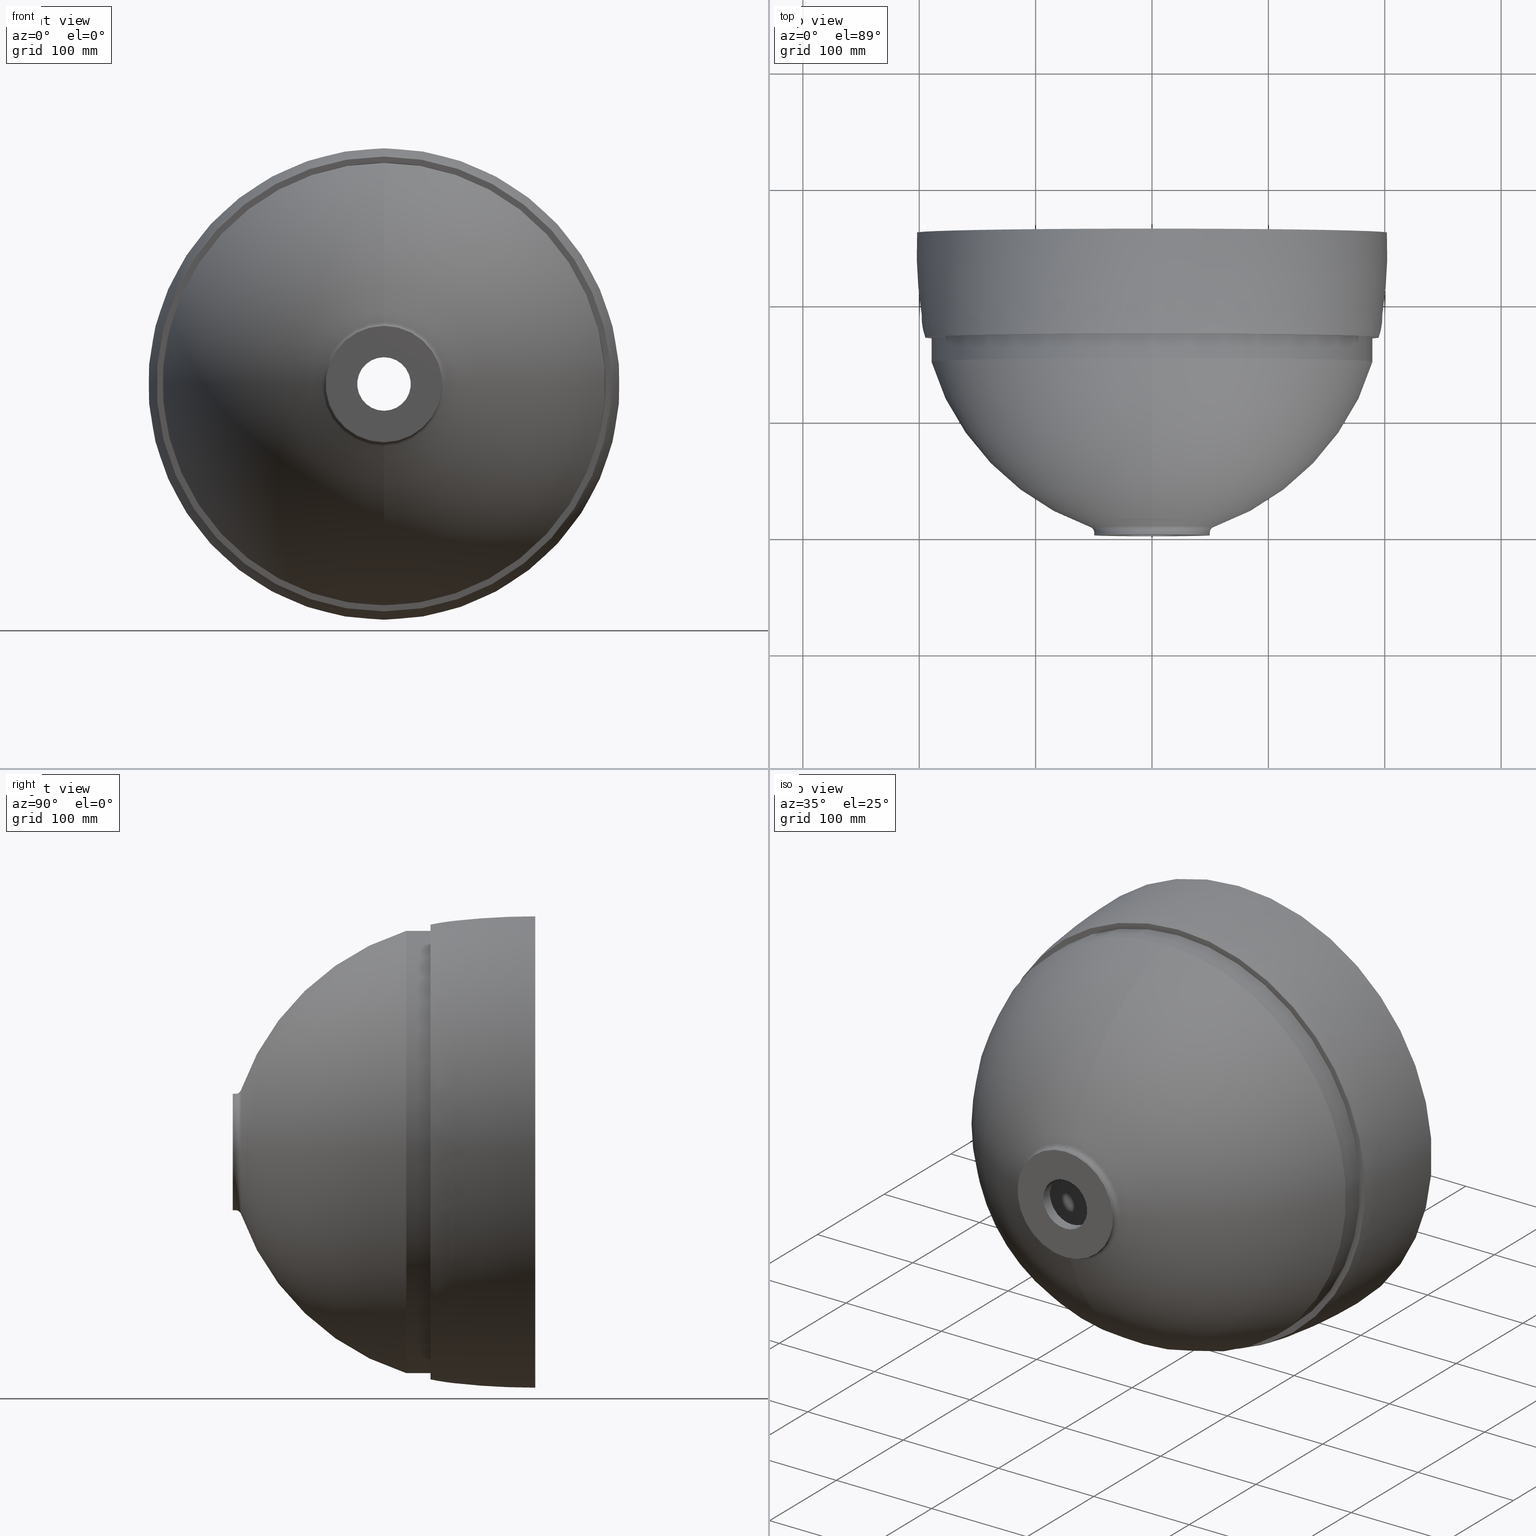
[diagram: canonical four-view strip — front | top / right | iso, engineering-drawing reading convention]
A machine part, canonical four-view strip (front | top / right | iso — engineering-drawing reading convention). The complete STEP part file that produces these views, byte-faithful:
ISO-10303-21;
HEADER;
FILE_DESCRIPTION (( 'STEP AP214' ),
    '1' );
FILE_NAME ('Z821-1SO.STEP',
    '2018-09-07T07:44:31',
    ( 'User' ),
    ( '' ),
    'SwSTEP 2.0',
    'SolidWorks 2017',
    '' );
FILE_SCHEMA (( 'AUTOMOTIVE_DESIGN' ));
ENDSEC;

DATA;
#1 = DIRECTION ( 'NONE',  ( -0.0000000000000000000, -1.000000000000000000, -0.0000000000000000000 ) ) ;
#2 = AXIS2_PLACEMENT_3D ( 'NONE', #77, #99, #374 ) ;
#3 = PRODUCT_CONTEXT ( 'NONE', #568, 'mechanical' ) ;
#4 = ADVANCED_FACE ( 'NONE', ( #101 ), #164, .T. ) ;
#5 = DIRECTION ( 'NONE',  ( -0.0000000000000000000, -1.000000000000000000, -0.0000000000000000000 ) ) ;
#6 = AXIS2_PLACEMENT_3D ( 'NONE', #523, #210, #426 ) ;
#7 = VERTEX_POINT ( 'NONE', #480 ) ;
#8 = TOROIDAL_SURFACE ( 'NONE', #537, 211.7896527892887400, 24.70099879950642900 ) ;
#9 = CARTESIAN_POINT ( 'NONE',  ( 2.816687638038930100E-015, 9.999999999999994700, 23.00000000000014600 ) ) ;
#10 = VERTEX_POINT ( 'NONE', #530 ) ;
#11 = ORIENTED_EDGE ( 'NONE', *, *, #689, .F. ) ;
#12 = AXIS2_PLACEMENT_3D ( 'NONE', #529, #145, #134 ) ;
#13 = CIRCLE ( 'NONE', #445, 23.00000000000014600 ) ;
#14 = CIRCLE ( 'NONE', #152, 49.99999999999999300 ) ;
#15 = ORIENTED_EDGE ( 'NONE', *, *, #563, .F. ) ;
#16 = AXIS2_PLACEMENT_3D ( 'NONE', #500, #170, #239 ) ;
#17 = DIRECTION ( 'NONE',  ( -0.0000000000000000000, -1.000000000000000000, -0.0000000000000000000 ) ) ;
#18 = DIRECTION ( 'NONE',  ( 0.0000000000000000000, 0.0000000000000000000, -1.000000000000000000 ) ) ;
#19 = ORIENTED_EDGE ( 'NONE', *, *, #463, .T. ) ;
#20 = DIRECTION ( 'NONE',  ( -0.0000000000000000000, -1.000000000000000000, -0.0000000000000000000 ) ) ;
#21 = DIRECTION ( 'NONE',  ( 0.0000000000000000000, 0.0000000000000000000, -1.000000000000000000 ) ) ;
#22 = CIRCLE ( 'NONE', #112, 202.5000000000002300 ) ;
#23 = MECHANICAL_DESIGN_GEOMETRIC_PRESENTATION_REPRESENTATION (  '', ( #650 ), #58 ) ;
#24 = DIRECTION ( 'NONE',  ( 0.0000000000000000000, 0.0000000000000000000, -1.000000000000000000 ) ) ;
#25 = DIRECTION ( 'NONE',  ( 0.0000000000000000000, 0.0000000000000000000, 1.000000000000000000 ) ) ;
#26 = DIRECTION ( 'NONE',  ( -0.0000000000000000000, -1.000000000000000000, -0.0000000000000000000 ) ) ;
#27 = EDGE_CURVE ( 'NONE', #451, #226, #449, .T. ) ;
#28 = DIRECTION ( 'NONE',  ( 0.0000000000000000000, 1.000000000000000000, 0.0000000000000000000 ) ) ;
#29 = CARTESIAN_POINT ( 'NONE',  ( 0.0000000000000000000, 9.999999999999994700, 0.0000000000000000000 ) ) ;
#30 = FACE_BOUND ( 'NONE', #497, .T. ) ;
#31 = AXIS2_PLACEMENT_3D ( 'NONE', #285, #1, #113 ) ;
#32 = ORIENTED_EDGE ( 'NONE', *, *, #220, .F. ) ;
#33 = DIRECTION ( 'NONE',  ( -1.224646799147353200E-016, 0.0000000000000000000, -1.000000000000000000 ) ) ;
#34 = VERTEX_POINT ( 'NONE', #63 ) ;
#35 = EDGE_CURVE ( 'NONE', #178, #419, #240, .T. ) ;
#36 = CARTESIAN_POINT ( 'NONE',  ( 0.0000000000000000000, 214.5517857468367100, 20.04393379733535600 ) ) ;
#37 = AXIS2_PLACEMENT_3D ( 'NONE', #418, #620, #138 ) ;
#38 = EDGE_LOOP ( 'NONE', ( #109, #15, #675, #39 ) ) ;
#39 = ORIENTED_EDGE ( 'NONE', *, *, #598, .T. ) ;
#40 = CARTESIAN_POINT ( 'NONE',  ( 0.0000000000000000000, 260.0000000000000000, -202.4999999999996600 ) ) ;
#41 = AXIS2_PLACEMENT_3D ( 'NONE', #287, #342, #397 ) ;
#42 = CARTESIAN_POINT ( 'NONE',  ( 0.0000000000000000000, 214.5517857468367100, 0.0000000000000000000 ) ) ;
#43 = CARTESIAN_POINT ( 'NONE',  ( 0.0000000000000000000, 2.435289452415639200, -55.00000000000000000 ) ) ;
#44 = FACE_OUTER_BOUND ( 'NONE', #50, .T. ) ;
#45 = CONICAL_SURFACE ( 'NONE', #577, 23.00000000000014600, 0.8726646259971667700 ) ;
#46 = VERTEX_POINT ( 'NONE', #602 ) ;
#47 = ORIENTED_EDGE ( 'NONE', *, *, #288, .F. ) ;
#48 = LINE ( 'NONE', #125, #468 ) ;
#49 = AXIS2_PLACEMENT_3D ( 'NONE', #246, #303, #666 ) ;
#50 = EDGE_LOOP ( 'NONE', ( #351, #587, #484, #32 ) ) ;
#51 = EDGE_CURVE ( 'NONE', #562, #46, #260, .T. ) ;
#52 = DIRECTION ( 'NONE',  ( -0.0000000000000000000, -1.000000000000000000, -0.0000000000000000000 ) ) ;
#53 = ORIENTED_EDGE ( 'NONE', *, *, #656, .F. ) ;
#54 =( NAMED_UNIT ( * ) PLANE_ANGLE_UNIT ( ) SI_UNIT ( $, .RADIAN. ) );
#55 = VERTEX_POINT ( 'NONE', #414 ) ;
#56 = ADVANCED_FACE ( 'NONE', ( #385 ), #108, .T. ) ;
#57 = DIRECTION ( 'NONE',  ( 0.0000000000000000000, 0.0000000000000000000, 1.000000000000000000 ) ) ;
#58 =( GEOMETRIC_REPRESENTATION_CONTEXT ( 3 ) GLOBAL_UNCERTAINTY_ASSIGNED_CONTEXT ( ( #667 ) ) GLOBAL_UNIT_ASSIGNED_CONTEXT ( ( #664, #552, #431 ) ) REPRESENTATION_CONTEXT ( 'NONE', 'WORKASPACE' ) );
#59 = ORIENTED_EDGE ( 'NONE', *, *, #567, .F. ) ;
#60 = ORIENTED_EDGE ( 'NONE', *, *, #413, .T. ) ;
#61 = CARTESIAN_POINT ( 'NONE',  ( 0.0000000000000000000, 9.999999999999994700, 0.0000000000000000000 ) ) ;
#62 = EDGE_CURVE ( 'NONE', #267, #128, #90, .T. ) ;
#63 = CARTESIAN_POINT ( 'NONE',  ( 0.0000000000000000000, 2.435289452415640100, -49.99999999999999300 ) ) ;
#64 = FACE_OUTER_BOUND ( 'NONE', #312, .T. ) ;
#65 = DIRECTION ( 'NONE',  ( 0.0000000000000000000, 0.0000000000000000000, -1.000000000000000000 ) ) ;
#66 = ORIENTED_EDGE ( 'NONE', *, *, #141, .T. ) ;
#67 = ORIENTED_EDGE ( 'NONE', *, *, #103, .T. ) ;
#68 = DIRECTION ( 'NONE',  ( 0.0000000000000000000, 0.0000000000000000000, -1.000000000000000000 ) ) ;
#69 = EDGE_CURVE ( 'NONE', #692, #681, #606, .T. ) ;
#70 = DIRECTION ( 'NONE',  ( -0.0000000000000000000, -1.000000000000000000, -0.0000000000000000000 ) ) ;
#71 = AXIS2_PLACEMENT_3D ( 'NONE', #581, #432, #630 ) ;
#72 = CARTESIAN_POINT ( 'NONE',  ( 0.0000000000000000000, 170.0000000000000000, 0.0000000000000000000 ) ) ;
#73 = VECTOR ( 'NONE', #206, 1000.000000000000000 ) ;
#74 = SURFACE_STYLE_FILL_AREA ( #87 ) ;
#75 = ORIENTED_EDGE ( 'NONE', *, *, #51, .F. ) ;
#76 = CARTESIAN_POINT ( 'NONE',  ( 6.123233995736766100E-015, -36.83810861832611700, 50.00000000000000000 ) ) ;
#77 = CARTESIAN_POINT ( 'NONE',  ( 0.0000000000000000000, 19.99999999999998900, 0.0000000000000000000 ) ) ;
#78 = DIRECTION ( 'NONE',  ( -0.0000000000000000000, -1.000000000000000000, -0.0000000000000000000 ) ) ;
#79 = EDGE_CURVE ( 'NONE', #55, #329, #421, .T. ) ;
#80 = DIRECTION ( 'NONE',  ( 0.0000000000000000000, 0.0000000000000000000, -1.000000000000000000 ) ) ;
#81 = TOROIDAL_SURFACE ( 'NONE', #281, -424.7456170315086900, 612.2456170315085700 ) ;
#82 = PRODUCT_DEFINITION_SHAPE ( 'NONE', 'NONE',  #117 ) ;
#83 = DIRECTION ( 'NONE',  ( 0.0000000000000000000, 0.0000000000000000000, -1.000000000000000000 ) ) ;
#84 = ORIENTED_EDGE ( 'NONE', *, *, #79, .T. ) ;
#85 = EDGE_LOOP ( 'NONE', ( #685, #59 ) ) ;
#86 = DIRECTION ( 'NONE',  ( -0.0000000000000000000, -1.000000000000000000, -0.0000000000000000000 ) ) ;
#87 = FILL_AREA_STYLE ('',( #116 ) ) ;
#88 = AXIS2_PLACEMENT_3D ( 'NONE', #660, #365, #142 ) ;
#89 = DIRECTION ( 'NONE',  ( -0.0000000000000000000, -1.000000000000000000, -0.0000000000000000000 ) ) ;
#90 = LINE ( 'NONE', #392, #147 ) ;
#91 = AXIS2_PLACEMENT_3D ( 'NONE', #237, #148, #472 ) ;
#92 = ORIENTED_EDGE ( 'NONE', *, *, #62, .F. ) ;
#93 = DIRECTION ( 'NONE',  ( 0.0000000000000000000, 0.0000000000000000000, -1.000000000000000000 ) ) ;
#94 = DIRECTION ( 'NONE',  ( 0.0000000000000000000, 0.0000000000000000000, -1.000000000000000000 ) ) ;
#95 = UNCERTAINTY_MEASURE_WITH_UNIT (LENGTH_MEASURE( 1.000000000000000100E-005 ), #583, 'distance_accuracy_value', 'NONE');
#96 = ADVANCED_FACE ( 'NONE', ( #274 ), #45, .F. ) ;
#97 = AXIS2_PLACEMENT_3D ( 'NONE', #616, #672, #252 ) ;
#98 = VERTEX_POINT ( 'NONE', #201 ) ;
#99 = DIRECTION ( 'NONE',  ( -0.0000000000000000000, -1.000000000000000000, -0.0000000000000000000 ) ) ;
#100 = EDGE_LOOP ( 'NONE', ( #183, #209, #202, #235 ) ) ;
#101 = FACE_OUTER_BOUND ( 'NONE', #621, .T. ) ;
#102 = ORIENTED_EDGE ( 'NONE', *, *, #364, .F. ) ;
#103 = EDGE_CURVE ( 'NONE', #289, #46, #644, .T. ) ;
#104 = ORIENTED_EDGE ( 'NONE', *, *, #295, .T. ) ;
#105 = DIRECTION ( 'NONE',  ( -0.0000000000000000000, -1.000000000000000000, -0.0000000000000000000 ) ) ;
#106 = AXIS2_PLACEMENT_3D ( 'NONE', #248, #191, #245 ) ;
#107 = CIRCLE ( 'NONE', #629, 612.2456170315086900 ) ;
#108 = TOROIDAL_SURFACE ( 'NONE', #31, -424.7456170315086900, 627.2456170315089100 ) ;
#109 = ORIENTED_EDGE ( 'NONE', *, *, #103, .F. ) ;
#110 = TOROIDAL_SURFACE ( 'NONE', #188, -424.7456170315086900, 627.2456170315089100 ) ;
#111 = CARTESIAN_POINT ( 'NONE',  ( 0.0000000000000000000, 9.999999999999994700, -23.00000000000014600 ) ) ;
#112 = AXIS2_PLACEMENT_3D ( 'NONE', #561, #516, #300 ) ;
#113 = DIRECTION ( 'NONE',  ( 0.0000000000000000000, 0.0000000000000000000, -1.000000000000000000 ) ) ;
#114 = DIRECTION ( 'NONE',  ( -0.0000000000000000000, -1.000000000000000000, -0.0000000000000000000 ) ) ;
#115 = ADVANCED_FACE ( 'NONE', ( #64 ), #343, .T. ) ;
#116 = FILL_AREA_STYLE_COLOUR ( '', #324 ) ;
#117 = PRODUCT_DEFINITION ( 'UNKNOWN', '', #588, #217 ) ;
#118 = DIRECTION ( 'NONE',  ( 0.0000000000000000000, -0.0000000000000000000, 1.000000000000000000 ) ) ;
#119 = ORIENTED_EDGE ( 'NONE', *, *, #179, .F. ) ;
#120 = ORIENTED_EDGE ( 'NONE', *, *, #598, .F. ) ;
#121 = DIRECTION ( 'NONE',  ( 0.0000000000000000000, 0.0000000000000000000, -1.000000000000000000 ) ) ;
#122 = CIRCLE ( 'NONE', #318, 198.5817961994824000 ) ;
#123 = CARTESIAN_POINT ( 'NONE',  ( 0.0000000000000000000, 260.0000000000000000, 424.7456170315086900 ) ) ;
#124 = SHAPE_DEFINITION_REPRESENTATION ( #592, #626 ) ;
#125 = CARTESIAN_POINT ( 'NONE',  ( 0.0000000000000000000, -36.83810861832611700, -190.0000000000000000 ) ) ;
#126 = AXIS2_PLACEMENT_3D ( 'NONE', #333, #649, #25 ) ;
#127 = FACE_OUTER_BOUND ( 'NONE', #538, .T. ) ;
#128 = VERTEX_POINT ( 'NONE', #356 ) ;
#129 = EDGE_LOOP ( 'NONE', ( #341, #492, #265, #211 ) ) ;
#130 = FACE_OUTER_BOUND ( 'NONE', #355, .T. ) ;
#131 = EDGE_CURVE ( 'NONE', #419, #451, #683, .T. ) ;
#132 = APPLICATION_PROTOCOL_DEFINITION ( 'draft international standard', 'automotive_design', 1998, #493 ) ;
#133 = CARTESIAN_POINT ( 'NONE',  ( 2.326828918379971300E-014, 170.0000000000000000, 190.0000000000000000 ) ) ;
#134 = DIRECTION ( 'NONE',  ( 0.0000000000000000000, 0.0000000000000000000, -1.000000000000000000 ) ) ;
#135 = FACE_OUTER_BOUND ( 'NONE', #253, .T. ) ;
#136 = CIRCLE ( 'NONE', #570, 195.3977947205355600 ) ;
#137 = ORIENTED_EDGE ( 'NONE', *, *, #477, .F. ) ;
#138 = DIRECTION ( 'NONE',  ( 0.0000000000000000000, 0.0000000000000000000, -1.000000000000000000 ) ) ;
#139 = CIRCLE ( 'NONE', #384, 190.0000000000000000 ) ;
#140 = DIRECTION ( 'NONE',  ( 1.000000000000000000, 0.0000000000000000000, -1.224646799147353200E-016 ) ) ;
#141 = EDGE_CURVE ( 'NONE', #267, #160, #624, .T. ) ;
#142 = DIRECTION ( 'NONE',  ( 0.0000000000000000000, 0.0000000000000000000, -1.000000000000000000 ) ) ;
#143 = CARTESIAN_POINT ( 'NONE',  ( 0.0000000000000000000, 260.0000000000000000, 0.0000000000000000000 ) ) ;
#144 = EDGE_LOOP ( 'NONE', ( #153, #338, #317, #611 ) ) ;
#145 = DIRECTION ( 'NONE',  ( -0.0000000000000000000, -1.000000000000000000, -0.0000000000000000000 ) ) ;
#146 = AXIS2_PLACEMENT_3D ( 'NONE', #417, #26, #24 ) ;
#147 = VECTOR ( 'NONE', #502, 1000.000000000000000 ) ;
#148 = DIRECTION ( 'NONE',  ( -0.0000000000000000000, -1.000000000000000000, -0.0000000000000000000 ) ) ;
#149 = ORIENTED_EDGE ( 'NONE', *, *, #35, .T. ) ;
#150 = CYLINDRICAL_SURFACE ( 'NONE', #662, 23.00000000000007100 ) ;
#151 = CARTESIAN_POINT ( 'NONE',  ( 0.0000000000000000000, 260.0000000000000000, 0.0000000000000000000 ) ) ;
#152 = AXIS2_PLACEMENT_3D ( 'NONE', #591, #17, #540 ) ;
#153 = ORIENTED_EDGE ( 'NONE', *, *, #141, .F. ) ;
#154 = DIRECTION ( 'NONE',  ( -0.0000000000000000000, -1.000000000000000000, -0.0000000000000000000 ) ) ;
#155 = VECTOR ( 'NONE', #70, 1000.000000000000000 ) ;
#156 = ORIENTED_EDGE ( 'NONE', *, *, #686, .T. ) ;
#157 = DIRECTION ( 'NONE',  ( 0.0000000000000000000, 0.0000000000000000000, 1.000000000000000000 ) ) ;
#158 = DIRECTION ( 'NONE',  ( 0.0000000000000000000, 0.0000000000000000000, -1.000000000000000000 ) ) ;
#159 = LINE ( 'NONE', #76, #560 ) ;
#160 = VERTEX_POINT ( 'NONE', #290 ) ;
#161 = DIRECTION ( 'NONE',  ( -1.000000000000000000, 0.0000000000000000000, 0.0000000000000000000 ) ) ;
#162 = APPLICATION_PROTOCOL_DEFINITION ( 'draft international standard', 'automotive_design', 1998, #568 ) ;
#163 = ORIENTED_EDGE ( 'NONE', *, *, #653, .T. ) ;
#164 = TOROIDAL_SURFACE ( 'NONE', #339, -20.04393379733535600, 220.0000000000000300 ) ;
#165 = AXIS2_PLACEMENT_3D ( 'NONE', #554, #410, #457 ) ;
#166 = ORIENTED_EDGE ( 'NONE', *, *, #563, .T. ) ;
#167 = DIRECTION ( 'NONE',  ( 0.0000000000000000000, 1.000000000000000000, 0.0000000000000000000 ) ) ;
#168 = EDGE_CURVE ( 'NONE', #222, #98, #250, .T. ) ;
#169 = DIRECTION ( 'NONE',  ( -1.224646799147353200E-016, 0.0000000000000000000, -1.000000000000000000 ) ) ;
#170 = DIRECTION ( 'NONE',  ( -1.000000000000000000, 0.0000000000000000000, 0.0000000000000000000 ) ) ;
#171 = ADVANCED_FACE ( 'NONE', ( #473 ), #81, .F. ) ;
#172 = CIRCLE ( 'NONE', #49, 24.70099879950643600 ) ;
#173 = DIRECTION ( 'NONE',  ( 0.0000000000000000000, 0.0000000000000000000, -1.000000000000000000 ) ) ;
#174 =( GEOMETRIC_REPRESENTATION_CONTEXT ( 3 ) GLOBAL_UNCERTAINTY_ASSIGNED_CONTEXT ( ( #508 ) ) GLOBAL_UNIT_ASSIGNED_CONTEXT ( ( #680, #54, #282 ) ) REPRESENTATION_CONTEXT ( 'NONE', 'WORKASPACE' ) );
#175 = PRESENTATION_STYLE_ASSIGNMENT (( #489 ) ) ;
#176 = CIRCLE ( 'NONE', #509, 53.33235702672588000 ) ;
#177 = CARTESIAN_POINT ( 'NONE',  ( 0.0000000000000000000, 0.0000000000000000000, 23.00000000000000000 ) ) ;
#178 = VERTEX_POINT ( 'NONE', #607 ) ;
#179 = EDGE_CURVE ( 'NONE', #566, #451, #107, .T. ) ;
#180 = EDGE_LOOP ( 'NONE', ( #506, #316, #216, #296 ) ) ;
#181 = CIRCLE ( 'NONE', #228, 23.00000000000000000 ) ;
#182 = VERTEX_POINT ( 'NONE', #655 ) ;
#183 = ORIENTED_EDGE ( 'NONE', *, *, #35, .F. ) ;
#184 = CARTESIAN_POINT ( 'NONE',  ( 0.0000000000000000000, -36.83810861832611700, 0.0000000000000000000 ) ) ;
#185 = AXIS2_PLACEMENT_3D ( 'NONE', #383, #273, #580 ) ;
#186 = CARTESIAN_POINT ( 'NONE',  ( 6.735557395310442600E-015, 2.435289452415639200, 55.00000000000000000 ) ) ;
#187 = CARTESIAN_POINT ( 'NONE',  ( 0.0000000000000000000, 7.148989370069442000, 0.0000000000000000000 ) ) ;
#188 = AXIS2_PLACEMENT_3D ( 'NONE', #151, #368, #80 ) ;
#189 = CARTESIAN_POINT ( 'NONE',  ( 0.0000000000000000000, 7.148989370069442000, 0.0000000000000000000 ) ) ;
#190 = PRODUCT_DEFINITION ( 'UNKNOWN', '', #471, #619 ) ;
#191 = DIRECTION ( 'NONE',  ( -0.0000000000000000000, -1.000000000000000000, -0.0000000000000000000 ) ) ;
#192 = VECTOR ( 'NONE', #78, 1000.000000000000000 ) ;
#193 = DIRECTION ( 'NONE',  ( 9.381338752702746800E-017, 0.6427876096865378100, -0.7660444431189793500 ) ) ;
#194 = CARTESIAN_POINT ( 'NONE',  ( 2.816687638038921000E-015, -36.83810861832611700, 23.00000000000007100 ) ) ;
#195 = DIRECTION ( 'NONE',  ( -0.0000000000000000000, -1.000000000000000000, -0.0000000000000000000 ) ) ;
#196 = DIRECTION ( 'NONE',  ( -0.0000000000000000000, -1.000000000000000000, -0.0000000000000000000 ) ) ;
#197 = FACE_BOUND ( 'NONE', #85, .T. ) ;
#198 = CIRCLE ( 'NONE', #12, 49.99999999999999300 ) ;
#199 = ORIENTED_EDGE ( 'NONE', *, *, #641, .F. ) ;
#200 = TOROIDAL_SURFACE ( 'NONE', #71, -424.7456170315086900, 612.2456170315085700 ) ;
#201 = CARTESIAN_POINT ( 'NONE',  ( 0.0000000000000000000, 0.0000000000000000000, -23.00000000000000000 ) ) ;
#202 = ORIENTED_EDGE ( 'NONE', *, *, #179, .T. ) ;
#203 = AXIS2_PLACEMENT_3D ( 'NONE', #255, #89, #556 ) ;
#204 = CARTESIAN_POINT ( 'NONE',  ( 6.327282014056567500E-015, 2.435289452415640100, 49.99999999999999300 ) ) ;
#205 = EDGE_LOOP ( 'NONE', ( #345, #386, #19, #515 ) ) ;
#206 = DIRECTION ( 'NONE',  ( -0.0000000000000000000, -1.000000000000000000, -0.0000000000000000000 ) ) ;
#207 = ORIENTED_EDGE ( 'NONE', *, *, #413, .F. ) ;
#208 = EDGE_CURVE ( 'NONE', #451, #419, #360, .T. ) ;
#209 = ORIENTED_EDGE ( 'NONE', *, *, #258, .F. ) ;
#210 = DIRECTION ( 'NONE',  ( -0.0000000000000000000, -1.000000000000000000, -0.0000000000000000000 ) ) ;
#211 = ORIENTED_EDGE ( 'NONE', *, *, #27, .F. ) ;
#212 = CARTESIAN_POINT ( 'NONE',  ( 0.0000000000000000000, 2.435289452415639200, 0.0000000000000000000 ) ) ;
#213 = AXIS2_PLACEMENT_3D ( 'NONE', #460, #637, #158 ) ;
#214 = CARTESIAN_POINT ( 'NONE',  ( 0.0000000000000000000, 237.1124118188993200, 0.0000000000000000000 ) ) ;
#215 = ORIENTED_EDGE ( 'NONE', *, *, #271, .T. ) ;
#216 = ORIENTED_EDGE ( 'NONE', *, *, #553, .T. ) ;
#217 = PRODUCT_DEFINITION_CONTEXT ( 'detailed design', #377, 'design' ) ;
#218 = DIRECTION ( 'NONE',  ( 0.0000000000000000000, 0.0000000000000000000, 1.000000000000000000 ) ) ;
#219 = TOROIDAL_SURFACE ( 'NONE', #275, 211.7896527892887400, 24.70099879950642900 ) ;
#220 = EDGE_CURVE ( 'NONE', #565, #623, #691, .T. ) ;
#221 = DIRECTION ( 'NONE',  ( -0.0000000000000000000, -1.000000000000000000, -0.0000000000000000000 ) ) ;
#222 = VERTEX_POINT ( 'NONE', #111 ) ;
#223 = ORIENTED_EDGE ( 'NONE', *, *, #254, .F. ) ;
#224 = ADVANCED_FACE ( 'NONE', ( #44 ), #659, .T. ) ;
#225 = EDGE_CURVE ( 'NONE', #178, #566, #323, .T. ) ;
#226 = VERTEX_POINT ( 'NONE', #543 ) ;
#227 = ADVANCED_FACE ( 'NONE', ( #197, #294 ), #593, .F. ) ;
#228 = AXIS2_PLACEMENT_3D ( 'NONE', #446, #5, #279 ) ;
#229 = EDGE_LOOP ( 'NONE', ( #573, #406, #393, #361 ) ) ;
#230 = DIRECTION ( 'NONE',  ( 0.0000000000000000000, 0.0000000000000000000, -1.000000000000000000 ) ) ;
#231 = CARTESIAN_POINT ( 'NONE',  ( 0.0000000000000000000, -36.83810861832611700, -50.00000000000000000 ) ) ;
#232 = DIRECTION ( 'NONE',  ( -0.0000000000000000000, -1.000000000000000000, -0.0000000000000000000 ) ) ;
#233 = SURFACE_STYLE_FILL_AREA ( #400 ) ;
#234 = DIRECTION ( 'NONE',  ( 0.0000000000000000000, 0.0000000000000000000, -1.000000000000000000 ) ) ;
#235 = ORIENTED_EDGE ( 'NONE', *, *, #208, .T. ) ;
#236 = TOROIDAL_SURFACE ( 'NONE', #475, -20.04393379733535600, 220.0000000000000900 ) ;
#237 = CARTESIAN_POINT ( 'NONE',  ( 0.0000000000000000000, -36.83810861832611700, 0.0000000000000000000 ) ) ;
#238 = ORIENTED_EDGE ( 'NONE', *, *, #244, .F. ) ;
#239 = DIRECTION ( 'NONE',  ( 0.0000000000000000000, 0.0000000000000000000, 1.000000000000000000 ) ) ;
#240 = CIRCLE ( 'NONE', #185, 612.2456170315086900 ) ;
#241 = ORIENTED_EDGE ( 'NONE', *, *, #674, .T. ) ;
#242 = ORIENTED_EDGE ( 'NONE', *, *, #656, .T. ) ;
#243 = DIRECTION ( 'NONE',  ( 0.0000000000000000000, 0.0000000000000000000, -1.000000000000000000 ) ) ;
#244 = EDGE_CURVE ( 'NONE', #692, #7, #403, .T. ) ;
#245 = DIRECTION ( 'NONE',  ( 0.0000000000000000000, 0.0000000000000000000, -1.000000000000000000 ) ) ;
#246 = CARTESIAN_POINT ( 'NONE',  ( 2.593675203809317700E-014, 237.1124118188993200, 211.7896527892887400 ) ) ;
#247 = ORIENTED_EDGE ( 'NONE', *, *, #532, .T. ) ;
#248 = CARTESIAN_POINT ( 'NONE',  ( 0.0000000000000000000, 191.6739853918302300, 0.0000000000000000000 ) ) ;
#249 = STYLED_ITEM ( 'NONE', ( #175 ), #626 ) ;
#250 = LINE ( 'NONE', #401, #155 ) ;
#251 = FACE_OUTER_BOUND ( 'NONE', #276, .T. ) ;
#252 = DIRECTION ( 'NONE',  ( 0.0000000000000000000, 0.0000000000000000000, -1.000000000000000000 ) ) ;
#253 = EDGE_LOOP ( 'NONE', ( #447, #627, #238, #490 ) ) ;
#254 = EDGE_CURVE ( 'NONE', #7, #334, #481, .T. ) ;
#255 = CARTESIAN_POINT ( 'NONE',  ( 0.0000000000000000000, -36.83810861832611700, 0.0000000000000000000 ) ) ;
#256 = CARTESIAN_POINT ( 'NONE',  ( 0.0000000000000000000, -36.83810861832611700, 0.0000000000000000000 ) ) ;
#257 = CARTESIAN_POINT ( 'NONE',  ( 0.0000000000000000000, 170.0000000000000000, 0.0000000000000000000 ) ) ;
#258 = EDGE_CURVE ( 'NONE', #566, #178, #564, .T. ) ;
#259 = CIRCLE ( 'NONE', #165, 50.00000000000000000 ) ;
#260 = CIRCLE ( 'NONE', #376, 220.0000000000000300 ) ;
#261 = ORIENTED_EDGE ( 'NONE', *, *, #362, .T. ) ;
#262 = LINE ( 'NONE', #231, #73 ) ;
#263 = ORIENTED_EDGE ( 'NONE', *, *, #532, .F. ) ;
#264 = AXIS2_PLACEMENT_3D ( 'NONE', #315, #20, #551 ) ;
#265 = ORIENTED_EDGE ( 'NONE', *, *, #503, .T. ) ;
#266 = DIRECTION ( 'NONE',  ( 0.0000000000000000000, 0.0000000000000000000, -1.000000000000000000 ) ) ;
#267 = VERTEX_POINT ( 'NONE', #9 ) ;
#268 = DIRECTION ( 'NONE',  ( 1.000000000000000000, 0.0000000000000000000, 0.0000000000000000000 ) ) ;
#269 = CIRCLE ( 'NONE', #2, 34.91753592594228900 ) ;
#270 = CARTESIAN_POINT ( 'NONE',  ( 0.0000000000000000000, 149.1182631843105400, 0.0000000000000000000 ) ) ;
#271 = EDGE_CURVE ( 'NONE', #562, #412, #422, .T. ) ;
#272 = ADVANCED_FACE ( 'NONE', ( #127 ), #444, .F. ) ;
#273 = DIRECTION ( 'NONE',  ( 1.000000000000000000, 0.0000000000000000000, -1.224646799147353200E-016 ) ) ;
#274 = FACE_OUTER_BOUND ( 'NONE', #533, .T. ) ;
#275 = AXIS2_PLACEMENT_3D ( 'NONE', #510, #52, #325 ) ;
#276 = EDGE_LOOP ( 'NONE', ( #166, #241, #576, #504 ) ) ;
#277 = ORIENTED_EDGE ( 'NONE', *, *, #686, .F. ) ;
#278 = FACE_OUTER_BOUND ( 'NONE', #229, .T. ) ;
#279 = DIRECTION ( 'NONE',  ( 0.0000000000000000000, 0.0000000000000000000, -1.000000000000000000 ) ) ;
#280 = ADVANCED_FACE ( 'NONE', ( #652 ), #643, .T. ) ;
#281 = AXIS2_PLACEMENT_3D ( 'NONE', #143, #559, #311 ) ;
#282 =( NAMED_UNIT ( * ) SI_UNIT ( $, .STERADIAN. ) SOLID_ANGLE_UNIT ( ) );
#283 = DIRECTION ( 'NONE',  ( 0.0000000000000000000, 1.000000000000000000, 0.0000000000000000000 ) ) ;
#284 = DIRECTION ( 'NONE',  ( -0.0000000000000000000, -1.000000000000000000, -0.0000000000000000000 ) ) ;
#285 = CARTESIAN_POINT ( 'NONE',  ( 0.0000000000000000000, 260.0000000000000000, 0.0000000000000000000 ) ) ;
#286 = ORIENTED_EDGE ( 'NONE', *, *, #328, .F. ) ;
#287 = CARTESIAN_POINT ( 'NONE',  ( 0.0000000000000000000, 191.6739853918302300, 0.0000000000000000000 ) ) ;
#288 = EDGE_CURVE ( 'NONE', #681, #623, #436, .T. ) ;
#289 = VERTEX_POINT ( 'NONE', #204 ) ;
#290 = CARTESIAN_POINT ( 'NONE',  ( 2.816687638038917100E-015, 0.0000000000000000000, 23.00000000000000000 ) ) ;
#291 = TOROIDAL_SURFACE ( 'NONE', #88, 55.00000000000000000, 5.000000000000004400 ) ;
#292 = FACE_OUTER_BOUND ( 'NONE', #596, .T. ) ;
#293 = CARTESIAN_POINT ( 'NONE',  ( 0.0000000000000000000, 238.0000000000000300, 0.0000000000000000000 ) ) ;
#294 = FACE_OUTER_BOUND ( 'NONE', #327, .T. ) ;
#295 = EDGE_CURVE ( 'NONE', #222, #267, #13, .T. ) ;
#296 = ORIENTED_EDGE ( 'NONE', *, *, #79, .F. ) ;
#297 = CLOSED_SHELL ( 'NONE', ( #96, #690, #572, #272, #4, #115, #640, #536, #646, #525, #491, #585, #171, #372, #56, #224, #390, #336, #442, #326, #280, #227, #486, #437 ) ) ;
#298 = CARTESIAN_POINT ( 'NONE',  ( 0.0000000000000000000, 260.0000000000000000, 424.7456170315086900 ) ) ;
#299 = AXIS2_PLACEMENT_3D ( 'NONE', #187, #528, #632 ) ;
#300 = DIRECTION ( 'NONE',  ( 0.0000000000000000000, 0.0000000000000000000, -1.000000000000000000 ) ) ;
#301 = CIRCLE ( 'NONE', #409, 24.70099879950643600 ) ;
#302 = SURFACE_STYLE_USAGE ( .BOTH. , #555 ) ;
#303 = DIRECTION ( 'NONE',  ( 1.000000000000000000, 0.0000000000000000000, -1.224646799147353200E-016 ) ) ;
#304 = ORIENTED_EDGE ( 'NONE', *, *, #62, .T. ) ;
#305 = DIRECTION ( 'NONE',  ( 0.0000000000000000000, 0.0000000000000000000, -1.000000000000000000 ) ) ;
#306 = EDGE_CURVE ( 'NONE', #289, #34, #198, .T. ) ;
#307 = CARTESIAN_POINT ( 'NONE',  ( 0.0000000000000000000, 0.0000000000000000000, 0.0000000000000000000 ) ) ;
#308 = CARTESIAN_POINT ( 'NONE',  ( 0.0000000000000000000, 149.1182631843105400, -189.9999999999999700 ) ) ;
#309 = CARTESIAN_POINT ( 'NONE',  ( 2.816687638038930100E-015, 9.999999999999994700, -23.00000000000014600 ) ) ;
#310 = ORIENTED_EDGE ( 'NONE', *, *, #131, .T. ) ;
#311 = DIRECTION ( 'NONE',  ( 0.0000000000000000000, 0.0000000000000000000, -1.000000000000000000 ) ) ;
#312 = EDGE_LOOP ( 'NONE', ( #60, #671, #277, #654 ) ) ;
#313 = CARTESIAN_POINT ( 'NONE',  ( 0.0000000000000000000, 0.0000000000000000000, -50.00000000000000000 ) ) ;
#314 = DIRECTION ( 'NONE',  ( 0.0000000000000000000, 0.0000000000000000000, 1.000000000000000000 ) ) ;
#315 = CARTESIAN_POINT ( 'NONE',  ( 0.0000000000000000000, 214.0514076550683700, 0.0000000000000000000 ) ) ;
#316 = ORIENTED_EDGE ( 'NONE', *, *, #306, .T. ) ;
#317 = ORIENTED_EDGE ( 'NONE', *, *, #168, .T. ) ;
#318 = AXIS2_PLACEMENT_3D ( 'NONE', #353, #114, #425 ) ;
#319 = CARTESIAN_POINT ( 'NONE',  ( 2.326828918379971300E-014, -36.83810861832611700, 190.0000000000000000 ) ) ;
#320 = DIRECTION ( 'NONE',  ( -1.224646799147353500E-016, 0.0000000000000000000, -1.000000000000000000 ) ) ;
#321 = AXIS2_PLACEMENT_3D ( 'NONE', #177, #651, #648 ) ;
#322 = DIRECTION ( 'NONE',  ( 1.000000000000000000, 0.0000000000000000000, -1.224646799147353200E-016 ) ) ;
#323 = CIRCLE ( 'NONE', #665, 187.1046061230580100 ) ;
#324 = COLOUR_RGB ( '',1.000000000000000000, 1.000000000000000000, 1.000000000000000000 ) ;
#325 = DIRECTION ( 'NONE',  ( 0.0000000000000000000, 0.0000000000000000000, -1.000000000000000000 ) ) ;
#326 = ADVANCED_FACE ( 'NONE', ( #379 ), #291, .F. ) ;
#327 = EDGE_LOOP ( 'NONE', ( #261, #84 ) ) ;
#328 = EDGE_CURVE ( 'NONE', #178, #7, #172, .T. ) ;
#329 = VERTEX_POINT ( 'NONE', #313 ) ;
#330 = CIRCLE ( 'NONE', #548, 23.00000000000014600 ) ;
#331 = EDGE_CURVE ( 'NONE', #461, #562, #615, .T. ) ;
#332 = CARTESIAN_POINT ( 'NONE',  ( 0.0000000000000000000, 9.999999999999994700, 0.0000000000000000000 ) ) ;
#333 = CARTESIAN_POINT ( 'NONE',  ( 0.0000000000000000000, 214.5517857468367100, 20.04393379733535600 ) ) ;
#334 = VERTEX_POINT ( 'NONE', #357 ) ;
#335 = AXIS2_PLACEMENT_3D ( 'NONE', #184, #663, #234 ) ;
#336 = ADVANCED_FACE ( 'NONE', ( #378 ), #677, .T. ) ;
#337 = DIRECTION ( 'NONE',  ( -0.0000000000000000000, -1.000000000000000000, -0.0000000000000000000 ) ) ;
#338 = ORIENTED_EDGE ( 'NONE', *, *, #295, .F. ) ;
#339 = AXIS2_PLACEMENT_3D ( 'NONE', #42, #105, #243 ) ;
#340 = DIRECTION ( 'NONE',  ( -0.0000000000000000000, -1.000000000000000000, -0.0000000000000000000 ) ) ;
#341 = ORIENTED_EDGE ( 'NONE', *, *, #131, .F. ) ;
#342 = DIRECTION ( 'NONE',  ( -0.0000000000000000000, -1.000000000000000000, -0.0000000000000000000 ) ) ;
#343 = CYLINDRICAL_SURFACE ( 'NONE', #524, 190.0000000000000000 ) ;
#344 = PRESENTATION_LAYER_ASSIGNMENT (  '', '', ( #249 ) ) ;
#345 = ORIENTED_EDGE ( 'NONE', *, *, #331, .F. ) ;
#346 = DIRECTION ( 'NONE',  ( 0.0000000000000000000, 0.0000000000000000000, -1.000000000000000000 ) ) ;
#347 = SURFACE_SIDE_STYLE ('',( #233 ) ) ;
#348 = AXIS2_PLACEMENT_3D ( 'NONE', #381, #283, #118 ) ;
#349 = CARTESIAN_POINT ( 'NONE',  ( -2.454673936722819900E-015, 214.5517857468367100, -20.04393379733535600 ) ) ;
#350 = DIRECTION ( 'NONE',  ( -1.000000000000000000, 0.0000000000000000000, 0.0000000000000000000 ) ) ;
#351 = ORIENTED_EDGE ( 'NONE', *, *, #604, .F. ) ;
#352 = DIRECTION ( 'NONE',  ( 0.0000000000000000000, 0.0000000000000000000, 1.000000000000000000 ) ) ;
#353 = CARTESIAN_POINT ( 'NONE',  ( 0.0000000000000000000, 189.9999999999998600, 0.0000000000000000000 ) ) ;
#354 = AXIS2_PLACEMENT_3D ( 'NONE', #186, #140, #514 ) ;
#355 = EDGE_LOOP ( 'NONE', ( #242, #496 ) ) ;
#356 = CARTESIAN_POINT ( 'NONE',  ( 1.338496286934549900E-014, 19.99999999999998900, 34.91753592594228900 ) ) ;
#357 = CARTESIAN_POINT ( 'NONE',  ( 2.455917689559837200E-014, 189.9999999999998600, 198.5817961994823700 ) ) ;
#358 = DIRECTION ( 'NONE',  ( 0.0000000000000000000, 0.0000000000000000000, -1.000000000000000000 ) ) ;
#359 = CARTESIAN_POINT ( 'NONE',  ( 0.0000000000000000000, -36.83810861832611700, 0.0000000000000000000 ) ) ;
#360 = CIRCLE ( 'NONE', #41, 183.6754964269714500 ) ;
#361 = ORIENTED_EDGE ( 'NONE', *, *, #69, .F. ) ;
#362 = EDGE_CURVE ( 'NONE', #329, #55, #259, .T. ) ;
#363 = EDGE_LOOP ( 'NONE', ( #75, #215, #404, #645 ) ) ;
#364 = EDGE_CURVE ( 'NONE', #412, #182, #474, .T. ) ;
#365 = DIRECTION ( 'NONE',  ( -0.0000000000000000000, -1.000000000000000000, -0.0000000000000000000 ) ) ;
#366 = EDGE_CURVE ( 'NONE', #222, #226, #483, .T. ) ;
#367 = ORIENTED_EDGE ( 'NONE', *, *, #366, .F. ) ;
#368 = DIRECTION ( 'NONE',  ( -0.0000000000000000000, -1.000000000000000000, -0.0000000000000000000 ) ) ;
#369 = ORIENTED_EDGE ( 'NONE', *, *, #51, .T. ) ;
#370 = AXIS2_PLACEMENT_3D ( 'NONE', #349, #459, #169 ) ;
#371 = CARTESIAN_POINT ( 'NONE',  ( -2.454673936722819900E-015, 214.5517857468367100, -20.04393379733535600 ) ) ;
#372 = ADVANCED_FACE ( 'NONE', ( #541 ), #219, .T. ) ;
#373 = CIRCLE ( 'NONE', #97, 34.91753592594228900 ) ;
#374 = DIRECTION ( 'NONE',  ( 0.0000000000000000000, 0.0000000000000000000, -1.000000000000000000 ) ) ;
#375 = PRODUCT ( 'Z821-1SO', 'Z821-1SO', '', ( #3 ) ) ;
#376 = AXIS2_PLACEMENT_3D ( 'NONE', #371, #571, #635 ) ;
#377 = APPLICATION_CONTEXT ( 'automotive_design' ) ;
#378 = FACE_OUTER_BOUND ( 'NONE', #205, .T. ) ;
#379 = FACE_OUTER_BOUND ( 'NONE', #38, .T. ) ;
#380 = ORIENTED_EDGE ( 'NONE', *, *, #604, .T. ) ;
#381 = CARTESIAN_POINT ( 'NONE',  ( 0.0000000000000000000, 170.0000000000000000, 195.3977947205355600 ) ) ;
#382 = MECHANICAL_DESIGN_GEOMETRIC_PRESENTATION_REPRESENTATION (  '', ( #249 ), #485 ) ;
#383 = CARTESIAN_POINT ( 'NONE',  ( -5.201633603495046300E-014, 260.0000000000000000, -424.7456170315086900 ) ) ;
#384 = AXIS2_PLACEMENT_3D ( 'NONE', #257, #487, #94 ) ;
#385 = FACE_OUTER_BOUND ( 'NONE', #505, .T. ) ;
#386 = ORIENTED_EDGE ( 'NONE', *, *, #470, .T. ) ;
#387 = CARTESIAN_POINT ( 'NONE',  ( 2.249376087810918100E-014, 191.6739853918302300, 183.6754964269715600 ) ) ;
#388 = AXIS2_PLACEMENT_3D ( 'NONE', #293, #603, #448 ) ;
#389 = DIRECTION ( 'NONE',  ( -0.0000000000000000000, -1.000000000000000000, -0.0000000000000000000 ) ) ;
#390 = ADVANCED_FACE ( 'NONE', ( #30, #130 ), #639, .F. ) ;
#391 = CARTESIAN_POINT ( 'NONE',  ( 0.0000000000000000000, 189.9999999999998600, -198.5817961994824000 ) ) ;
#392 = CARTESIAN_POINT ( 'NONE',  ( 0.0000000000000000000, 9.999999999999994700, 23.00000000000014600 ) ) ;
#393 = ORIENTED_EDGE ( 'NONE', *, *, #398, .F. ) ;
#394 = DIRECTION ( 'NONE',  ( -0.0000000000000000000, -1.000000000000000000, -0.0000000000000000000 ) ) ;
#395 = ORIENTED_EDGE ( 'NONE', *, *, #638, .T. ) ;
#396 = CIRCLE ( 'NONE', #488, 190.0000000000000000 ) ;
#397 = DIRECTION ( 'NONE',  ( 0.0000000000000000000, 0.0000000000000000000, -1.000000000000000000 ) ) ;
#398 = EDGE_CURVE ( 'NONE', #681, #334, #122, .T. ) ;
#399 = DIRECTION ( 'NONE',  ( 1.000000000000000000, 0.0000000000000000000, 0.0000000000000000000 ) ) ;
#400 = FILL_AREA_STYLE ('',( #517 ) ) ;
#401 = CARTESIAN_POINT ( 'NONE',  ( 0.0000000000000000000, -36.83810861832611700, -23.00000000000007100 ) ) ;
#402 = AXIS2_PLACEMENT_3D ( 'NONE', #575, #634, #527 ) ;
#403 = CIRCLE ( 'NONE', #402, 202.5000000000002300 ) ;
#404 = ORIENTED_EDGE ( 'NONE', *, *, #364, .T. ) ;
#405 = CYLINDRICAL_SURFACE ( 'NONE', #335, 50.00000000000000000 ) ;
#406 = ORIENTED_EDGE ( 'NONE', *, *, #254, .T. ) ;
#407 = CONICAL_SURFACE ( 'NONE', #452, 23.00000000000014600, 0.8726646259971667700 ) ;
#408 = CARTESIAN_POINT ( 'NONE',  ( 0.0000000000000000000, 191.6739853918302300, -183.6754964269715600 ) ) ;
#409 = AXIS2_PLACEMENT_3D ( 'NONE', #550, #618, #526 ) ;
#410 = DIRECTION ( 'NONE',  ( -0.0000000000000000000, -1.000000000000000000, -0.0000000000000000000 ) ) ;
#411 = ORIENTED_EDGE ( 'NONE', *, *, #689, .T. ) ;
#412 = VERTEX_POINT ( 'NONE', #308 ) ;
#413 = EDGE_CURVE ( 'NONE', #10, #461, #139, .T. ) ;
#414 = CARTESIAN_POINT ( 'NONE',  ( 6.123233995736766100E-015, 0.0000000000000000000, 50.00000000000000000 ) ) ;
#415 = DIRECTION ( 'NONE',  ( -1.000000000000000000, 0.0000000000000000000, 0.0000000000000000000 ) ) ;
#416 = DIRECTION ( 'NONE',  ( -0.0000000000000000000, -1.000000000000000000, -0.0000000000000000000 ) ) ;
#417 = CARTESIAN_POINT ( 'NONE',  ( 0.0000000000000000000, 0.0000000000000000000, 0.0000000000000000000 ) ) ;
#418 = CARTESIAN_POINT ( 'NONE',  ( 0.0000000000000000000, 189.9999999999998600, 0.0000000000000000000 ) ) ;
#419 = VERTEX_POINT ( 'NONE', #387 ) ;
#420 = DIRECTION ( 'NONE',  ( 1.000000000000000000, 0.0000000000000000000, -1.224646799147353200E-016 ) ) ;
#421 = CIRCLE ( 'NONE', #146, 50.00000000000000000 ) ;
#422 = CIRCLE ( 'NONE', #6, 189.9999999999999700 ) ;
#423 = AXIS2_PLACEMENT_3D ( 'NONE', #455, #86, #358 ) ;
#424 = EDGE_LOOP ( 'NONE', ( #454, #380, #53, #47 ) ) ;
#425 = DIRECTION ( 'NONE',  ( 0.0000000000000000000, 0.0000000000000000000, -1.000000000000000000 ) ) ;
#426 = DIRECTION ( 'NONE',  ( 0.0000000000000000000, 0.0000000000000000000, -1.000000000000000000 ) ) ;
#427 = AXIS2_PLACEMENT_3D ( 'NONE', #628, #322, #320 ) ;
#428 = CIRCLE ( 'NONE', #370, 220.0000000000000900 ) ;
#429 = VECTOR ( 'NONE', #193, 1000.000000000000000 ) ;
#430 = DIRECTION ( 'NONE',  ( 0.0000000000000000000, 0.0000000000000000000, 1.000000000000000000 ) ) ;
#431 =( NAMED_UNIT ( * ) SI_UNIT ( $, .STERADIAN. ) SOLID_ANGLE_UNIT ( ) );
#432 = DIRECTION ( 'NONE',  ( -0.0000000000000000000, -1.000000000000000000, -0.0000000000000000000 ) ) ;
#433 = CIRCLE ( 'NONE', #443, 200.5162862154270400 ) ;
#434 = PRODUCT ( 'Z821-1SO', 'Z821-1SO', '', ( #494 ) ) ;
#435 = EDGE_CURVE ( 'NONE', #98, #160, #542, .T. ) ;
#436 = CIRCLE ( 'NONE', #438, 220.0000000000000900 ) ;
#437 = ADVANCED_FACE ( 'NONE', ( #693 ), #407, .F. ) ;
#438 = AXIS2_PLACEMENT_3D ( 'NONE', #36, #469, #676 ) ;
#439 = PRODUCT_RELATED_PRODUCT_CATEGORY ( 'part', '', ( #434 ) ) ;
#440 = APPLICATION_PROTOCOL_DEFINITION ( 'draft international standard', 'automotive_design', 1998, #377 ) ;
#441 =( NAMED_UNIT ( * ) PLANE_ANGLE_UNIT ( ) SI_UNIT ( $, .RADIAN. ) );
#442 = ADVANCED_FACE ( 'NONE', ( #600 ), #647, .T. ) ;
#443 = AXIS2_PLACEMENT_3D ( 'NONE', #467, #420, #33 ) ;
#444 = TOROIDAL_SURFACE ( 'NONE', #679, 55.00000000000000000, 5.000000000000004400 ) ;
#445 = AXIS2_PLACEMENT_3D ( 'NONE', #29, #416, #83 ) ;
#446 = CARTESIAN_POINT ( 'NONE',  ( 0.0000000000000000000, 0.0000000000000000000, 0.0000000000000000000 ) ) ;
#447 = ORIENTED_EDGE ( 'NONE', *, *, #258, .T. ) ;
#448 = DIRECTION ( 'NONE',  ( 0.0000000000000000000, 0.0000000000000000000, -1.000000000000000000 ) ) ;
#449 = CIRCLE ( 'NONE', #16, 200.5162862154270400 ) ;
#450 = ORIENTED_EDGE ( 'NONE', *, *, #503, .F. ) ;
#451 = VERTEX_POINT ( 'NONE', #408 ) ;
#452 = AXIS2_PLACEMENT_3D ( 'NONE', #642, #167, #352 ) ;
#453 = CARTESIAN_POINT ( 'NONE',  ( 0.0000000000000000000, 170.0000000000000000, -195.3977947205355600 ) ) ;
#454 = ORIENTED_EDGE ( 'NONE', *, *, #398, .T. ) ;
#455 = CARTESIAN_POINT ( 'NONE',  ( 0.0000000000000000000, 0.0000000000000000000, 0.0000000000000000000 ) ) ;
#456 = AXIS2_PLACEMENT_3D ( 'NONE', #601, #394, #121 ) ;
#457 = DIRECTION ( 'NONE',  ( 0.0000000000000000000, 0.0000000000000000000, -1.000000000000000000 ) ) ;
#458 = DIRECTION ( 'NONE',  ( -0.0000000000000000000, -1.000000000000000000, -0.0000000000000000000 ) ) ;
#459 = DIRECTION ( 'NONE',  ( 1.000000000000000000, 0.0000000000000000000, -1.224646799147353200E-016 ) ) ;
#460 = CARTESIAN_POINT ( 'NONE',  ( 0.0000000000000000000, -36.83810861832611700, 0.0000000000000000000 ) ) ;
#461 = VERTEX_POINT ( 'NONE', #133 ) ;
#462 = DIRECTION ( 'NONE',  ( 0.0000000000000000000, 0.0000000000000000000, -1.000000000000000000 ) ) ;
#463 = EDGE_CURVE ( 'NONE', #10, #412, #48, .T. ) ;
#464 = TOROIDAL_SURFACE ( 'NONE', #264, -15.58822834620374200, 200.5162862154270400 ) ;
#465 = CARTESIAN_POINT ( 'NONE',  ( 2.412429224747918000E-014, 170.0000000000000000, 195.3977947205355600 ) ) ;
#466 = ORIENTED_EDGE ( 'NONE', *, *, #168, .F. ) ;
#467 = CARTESIAN_POINT ( 'NONE',  ( -1.909007394855645100E-015, 214.0514076550683700, -15.58822834620374200 ) ) ;
#468 = VECTOR ( 'NONE', #512, 1000.000000000000000 ) ;
#469 = DIRECTION ( 'NONE',  ( -1.000000000000000000, 0.0000000000000000000, 0.0000000000000000000 ) ) ;
#470 = EDGE_CURVE ( 'NONE', #461, #10, #396, .T. ) ;
#471 = PRODUCT_DEFINITION_FORMATION_WITH_SPECIFIED_SOURCE ( 'ANY', '', #434, .NOT_KNOWN. ) ;
#472 = DIRECTION ( 'NONE',  ( 0.0000000000000000000, 0.0000000000000000000, -1.000000000000000000 ) ) ;
#473 = FACE_OUTER_BOUND ( 'NONE', #100, .T. ) ;
#474 = CIRCLE ( 'NONE', #126, 220.0000000000000300 ) ;
#475 = AXIS2_PLACEMENT_3D ( 'NONE', #558, #196, #266 ) ;
#476 = AXIS2_PLACEMENT_3D ( 'NONE', #307, #218, #399 ) ;
#477 = EDGE_CURVE ( 'NONE', #267, #222, #330, .T. ) ;
#478 = ORIENTED_EDGE ( 'NONE', *, *, #567, .T. ) ;
#479 = EDGE_LOOP ( 'NONE', ( #286, #521, #395, #263 ) ) ;
#480 = CARTESIAN_POINT ( 'NONE',  ( 2.479909768273386100E-014, 260.0000000000000000, 202.4999999999996600 ) ) ;
#481 = CIRCLE ( 'NONE', #427, 627.2456170315088000 ) ;
#482 = FACE_OUTER_BOUND ( 'NONE', #513, .T. ) ;
#483 = LINE ( 'NONE', #309, #429 ) ;
#484 = ORIENTED_EDGE ( 'NONE', *, *, #288, .T. ) ;
#485 =( GEOMETRIC_REPRESENTATION_CONTEXT ( 3 ) GLOBAL_UNCERTAINTY_ASSIGNED_CONTEXT ( ( #95 ) ) GLOBAL_UNIT_ASSIGNED_CONTEXT ( ( #583, #441, #688 ) ) REPRESENTATION_CONTEXT ( 'NONE', 'WORKASPACE' ) );
#486 = ADVANCED_FACE ( 'NONE', ( #507 ), #150, .F. ) ;
#487 = DIRECTION ( 'NONE',  ( -0.0000000000000000000, -1.000000000000000000, -0.0000000000000000000 ) ) ;
#488 = AXIS2_PLACEMENT_3D ( 'NONE', #501, #340, #68 ) ;
#489 = SURFACE_STYLE_USAGE ( .BOTH. , #347 ) ;
#490 = ORIENTED_EDGE ( 'NONE', *, *, #638, .F. ) ;
#491 = ADVANCED_FACE ( 'NONE', ( #609 ), #673, .F. ) ;
#492 = ORIENTED_EDGE ( 'NONE', *, *, #641, .T. ) ;
#493 = APPLICATION_CONTEXT ( 'automotive_design' ) ;
#494 = PRODUCT_CONTEXT ( 'NONE', #574, 'mechanical' ) ;
#495 = CYLINDRICAL_SURFACE ( 'NONE', #213, 23.00000000000007100 ) ;
#496 = ORIENTED_EDGE ( 'NONE', *, *, #220, .T. ) ;
#497 = EDGE_LOOP ( 'NONE', ( #207, #599 ) ) ;
#498 = CARTESIAN_POINT ( 'NONE',  ( 0.0000000000000000000, 170.0000000000000000, 0.0000000000000000000 ) ) ;
#499 = EDGE_CURVE ( 'NONE', #34, #182, #534, .T. ) ;
#500 = CARTESIAN_POINT ( 'NONE',  ( 0.0000000000000000000, 214.0514076550683700, 15.58822834620374200 ) ) ;
#501 = CARTESIAN_POINT ( 'NONE',  ( 0.0000000000000000000, 170.0000000000000000, 0.0000000000000000000 ) ) ;
#502 = DIRECTION ( 'NONE',  ( 0.0000000000000000000, 0.6427876096865378100, 0.7660444431189793500 ) ) ;
#503 = EDGE_CURVE ( 'NONE', #128, #226, #269, .T. ) ;
#504 = ORIENTED_EDGE ( 'NONE', *, *, #553, .F. ) ;
#505 = EDGE_LOOP ( 'NONE', ( #223, #247, #557, #636 ) ) ;
#506 = ORIENTED_EDGE ( 'NONE', *, *, #674, .F. ) ;
#507 = FACE_OUTER_BOUND ( 'NONE', #144, .T. ) ;
#508 = UNCERTAINTY_MEASURE_WITH_UNIT (LENGTH_MEASURE( 1.000000000000000100E-005 ), #680, 'distance_accuracy_value', 'NONE');
#509 = AXIS2_PLACEMENT_3D ( 'NONE', #189, #569, #305 ) ;
#510 = CARTESIAN_POINT ( 'NONE',  ( 0.0000000000000000000, 237.1124118188993200, 0.0000000000000000000 ) ) ;
#511 = ORIENTED_EDGE ( 'NONE', *, *, #366, .T. ) ;
#512 = DIRECTION ( 'NONE',  ( -0.0000000000000000000, -1.000000000000000000, -0.0000000000000000000 ) ) ;
#513 = EDGE_LOOP ( 'NONE', ( #661, #149, #310, #119 ) ) ;
#514 = DIRECTION ( 'NONE',  ( -1.224646799147353900E-016, 0.0000000000000000000, -1.000000000000000000 ) ) ;
#515 = ORIENTED_EDGE ( 'NONE', *, *, #271, .F. ) ;
#516 = DIRECTION ( 'NONE',  ( -0.0000000000000000000, -1.000000000000000000, -0.0000000000000000000 ) ) ;
#517 = FILL_AREA_STYLE_COLOUR ( '', #631 ) ;
#518 = ORIENTED_EDGE ( 'NONE', *, *, #477, .T. ) ;
#519 = AXIS2_PLACEMENT_3D ( 'NONE', #612, #389, #18 ) ;
#520 = FACE_OUTER_BOUND ( 'NONE', #597, .T. ) ;
#521 = ORIENTED_EDGE ( 'NONE', *, *, #225, .T. ) ;
#522 = CIRCLE ( 'NONE', #608, 189.9999999999999700 ) ;
#523 = CARTESIAN_POINT ( 'NONE',  ( 0.0000000000000000000, 149.1182631843105400, 0.0000000000000000000 ) ) ;
#524 = AXIS2_PLACEMENT_3D ( 'NONE', #256, #545, #462 ) ;
#525 = ADVANCED_FACE ( 'NONE', ( #482 ), #200, .F. ) ;
#526 = DIRECTION ( 'NONE',  ( 0.0000000000000000000, 0.0000000000000000000, 1.000000000000000000 ) ) ;
#527 = DIRECTION ( 'NONE',  ( 0.0000000000000000000, 0.0000000000000000000, -1.000000000000000000 ) ) ;
#528 = DIRECTION ( 'NONE',  ( -0.0000000000000000000, -1.000000000000000000, -0.0000000000000000000 ) ) ;
#529 = CARTESIAN_POINT ( 'NONE',  ( 0.0000000000000000000, 2.435289452415640100, 0.0000000000000000000 ) ) ;
#530 = CARTESIAN_POINT ( 'NONE',  ( 0.0000000000000000000, 170.0000000000000000, -190.0000000000000000 ) ) ;
#531 = EDGE_CURVE ( 'NONE', #334, #681, #614, .T. ) ;
#532 = EDGE_CURVE ( 'NONE', #7, #692, #22, .T. ) ;
#533 = EDGE_LOOP ( 'NONE', ( #518, #511, #450, #92 ) ) ;
#534 = CIRCLE ( 'NONE', #622, 5.000000000000004400 ) ;
#535 = CARTESIAN_POINT ( 'NONE',  ( 2.326828918379971000E-014, 149.1182631843105400, 189.9999999999999700 ) ) ;
#536 = ADVANCED_FACE ( 'NONE', ( #278 ), #110, .T. ) ;
#537 = AXIS2_PLACEMENT_3D ( 'NONE', #214, #684, #670 ) ;
#538 = EDGE_LOOP ( 'NONE', ( #579, #67, #163, #578 ) ) ;
#539 = CARTESIAN_POINT ( 'NONE',  ( 0.0000000000000000000, 238.0000000000000300, 0.0000000000000000000 ) ) ;
#540 = DIRECTION ( 'NONE',  ( 0.0000000000000000000, 0.0000000000000000000, -1.000000000000000000 ) ) ;
#541 = FACE_OUTER_BOUND ( 'NONE', #479, .T. ) ;
#542 = CIRCLE ( 'NONE', #423, 23.00000000000000000 ) ;
#543 = CARTESIAN_POINT ( 'NONE',  ( 0.0000000000000000000, 19.99999999999998900, -34.91753592594228900 ) ) ;
#544 = DIRECTION ( 'NONE',  ( -0.0000000000000000000, -1.000000000000000000, -0.0000000000000000000 ) ) ;
#545 = DIRECTION ( 'NONE',  ( -0.0000000000000000000, -1.000000000000000000, -0.0000000000000000000 ) ) ;
#546 = ORIENTED_EDGE ( 'NONE', *, *, #27, .T. ) ;
#547 = DIRECTION ( 'NONE',  ( -0.0000000000000000000, -1.000000000000000000, -0.0000000000000000000 ) ) ;
#548 = AXIS2_PLACEMENT_3D ( 'NONE', #61, #590, #230 ) ;
#549 = AXIS2_PLACEMENT_3D ( 'NONE', #610, #314, #268 ) ;
#550 = CARTESIAN_POINT ( 'NONE',  ( 0.0000000000000000000, 237.1124118188993200, -211.7896527892887400 ) ) ;
#551 = DIRECTION ( 'NONE',  ( 0.0000000000000000000, 0.0000000000000000000, -1.000000000000000000 ) ) ;
#552 =( NAMED_UNIT ( * ) PLANE_ANGLE_UNIT ( ) SI_UNIT ( $, .RADIAN. ) );
#553 = EDGE_CURVE ( 'NONE', #34, #329, #262, .T. ) ;
#554 = CARTESIAN_POINT ( 'NONE',  ( 0.0000000000000000000, 0.0000000000000000000, 0.0000000000000000000 ) ) ;
#555 = SURFACE_SIDE_STYLE ('',( #74 ) ) ;
#556 = DIRECTION ( 'NONE',  ( 0.0000000000000000000, 0.0000000000000000000, -1.000000000000000000 ) ) ;
#557 = ORIENTED_EDGE ( 'NONE', *, *, #69, .T. ) ;
#558 = CARTESIAN_POINT ( 'NONE',  ( 0.0000000000000000000, 214.5517857468367100, 0.0000000000000000000 ) ) ;
#559 = DIRECTION ( 'NONE',  ( -0.0000000000000000000, -1.000000000000000000, -0.0000000000000000000 ) ) ;
#560 = VECTOR ( 'NONE', #458, 1000.000000000000000 ) ;
#561 = CARTESIAN_POINT ( 'NONE',  ( 0.0000000000000000000, 260.0000000000000000, 0.0000000000000000000 ) ) ;
#562 = VERTEX_POINT ( 'NONE', #535 ) ;
#563 = EDGE_CURVE ( 'NONE', #34, #289, #14, .T. ) ;
#564 = CIRCLE ( 'NONE', #388, 187.1046061230580100 ) ;
#565 = VERTEX_POINT ( 'NONE', #465 ) ;
#566 = VERTEX_POINT ( 'NONE', #658 ) ;
#567 = EDGE_CURVE ( 'NONE', #160, #98, #181, .T. ) ;
#568 = APPLICATION_CONTEXT ( 'automotive_design' ) ;
#569 = DIRECTION ( 'NONE',  ( -0.0000000000000000000, -1.000000000000000000, -0.0000000000000000000 ) ) ;
#570 = AXIS2_PLACEMENT_3D ( 'NONE', #72, #284, #173 ) ;
#571 = DIRECTION ( 'NONE',  ( 1.000000000000000000, 0.0000000000000000000, -1.224646799147353200E-016 ) ) ;
#572 = ADVANCED_FACE ( 'NONE', ( #251 ), #405, .T. ) ;
#573 = ORIENTED_EDGE ( 'NONE', *, *, #244, .T. ) ;
#574 = APPLICATION_CONTEXT ( 'automotive_design' ) ;
#575 = CARTESIAN_POINT ( 'NONE',  ( 0.0000000000000000000, 260.0000000000000000, 0.0000000000000000000 ) ) ;
#576 = ORIENTED_EDGE ( 'NONE', *, *, #362, .F. ) ;
#577 = AXIS2_PLACEMENT_3D ( 'NONE', #332, #28, #157 ) ;
#578 = ORIENTED_EDGE ( 'NONE', *, *, #499, .F. ) ;
#579 = ORIENTED_EDGE ( 'NONE', *, *, #306, .F. ) ;
#580 = DIRECTION ( 'NONE',  ( -1.224646799147353200E-016, 0.0000000000000000000, -1.000000000000000000 ) ) ;
#581 = CARTESIAN_POINT ( 'NONE',  ( 0.0000000000000000000, 260.0000000000000000, 0.0000000000000000000 ) ) ;
#582 = AXIS2_PLACEMENT_3D ( 'NONE', #584, #337, #65 ) ;
#583 =( LENGTH_UNIT ( ) NAMED_UNIT ( * ) SI_UNIT ( .MILLI., .METRE. ) );
#584 = CARTESIAN_POINT ( 'NONE',  ( 0.0000000000000000000, 214.0514076550683700, 0.0000000000000000000 ) ) ;
#585 = ADVANCED_FACE ( 'NONE', ( #292 ), #464, .F. ) ;
#586 = AXIS2_PLACEMENT_3D ( 'NONE', #498, #544, #595 ) ;
#587 = ORIENTED_EDGE ( 'NONE', *, *, #531, .T. ) ;
#588 = PRODUCT_DEFINITION_FORMATION_WITH_SPECIFIED_SOURCE ( 'ANY', '', #375, .NOT_KNOWN. ) ;
#589 = DIRECTION ( 'NONE',  ( 0.0000000000000000000, 0.0000000000000000000, -1.000000000000000000 ) ) ;
#590 = DIRECTION ( 'NONE',  ( -0.0000000000000000000, -1.000000000000000000, -0.0000000000000000000 ) ) ;
#591 = CARTESIAN_POINT ( 'NONE',  ( 0.0000000000000000000, 2.435289452415640100, 0.0000000000000000000 ) ) ;
#592 = PRODUCT_DEFINITION_SHAPE ( 'NONE', 'NONE',  #190 ) ;
#593 = PLANE ( 'NONE',  #321 ) ;
#594 = FACE_OUTER_BOUND ( 'NONE', #424, .T. ) ;
#595 = DIRECTION ( 'NONE',  ( 0.0000000000000000000, 0.0000000000000000000, -1.000000000000000000 ) ) ;
#596 = EDGE_LOOP ( 'NONE', ( #199, #678, #546, #411 ) ) ;
#597 = EDGE_LOOP ( 'NONE', ( #137, #66, #478, #466 ) ) ;
#598 = EDGE_CURVE ( 'NONE', #182, #46, #669, .T. ) ;
#599 = ORIENTED_EDGE ( 'NONE', *, *, #470, .F. ) ;
#600 = FACE_OUTER_BOUND ( 'NONE', #363, .T. ) ;
#601 = CARTESIAN_POINT ( 'NONE',  ( 0.0000000000000000000, 214.5517857468367100, 0.0000000000000000000 ) ) ;
#602 = CARTESIAN_POINT ( 'NONE',  ( 1.489980960808803700E-014, 7.148989370069442000, 53.33235702672588000 ) ) ;
#603 = DIRECTION ( 'NONE',  ( -0.0000000000000000000, -1.000000000000000000, -0.0000000000000000000 ) ) ;
#604 = EDGE_CURVE ( 'NONE', #334, #565, #428, .T. ) ;
#605 = APPLICATION_PROTOCOL_DEFINITION ( 'draft international standard', 'automotive_design', 1998, #574 ) ;
#606 = CIRCLE ( 'NONE', #617, 627.2456170315088000 ) ;
#607 = CARTESIAN_POINT ( 'NONE',  ( 2.291370569943290600E-014, 238.0000000000000300, 187.1046061230578300 ) ) ;
#608 = AXIS2_PLACEMENT_3D ( 'NONE', #270, #221, #21 ) ;
#609 = FACE_OUTER_BOUND ( 'NONE', #129, .T. ) ;
#610 = CARTESIAN_POINT ( 'NONE',  ( 0.0000000000000000000, 0.0000000000000000000, 0.0000000000000000000 ) ) ;
#611 = ORIENTED_EDGE ( 'NONE', *, *, #435, .T. ) ;
#612 = CARTESIAN_POINT ( 'NONE',  ( 0.0000000000000000000, 214.5517857468367100, 0.0000000000000000000 ) ) ;
#613 = VECTOR ( 'NONE', #195, 1000.000000000000000 ) ;
#614 = CIRCLE ( 'NONE', #37, 198.5817961994824000 ) ;
#615 = LINE ( 'NONE', #319, #613 ) ;
#616 = CARTESIAN_POINT ( 'NONE',  ( 0.0000000000000000000, 19.99999999999998900, 0.0000000000000000000 ) ) ;
#617 = AXIS2_PLACEMENT_3D ( 'NONE', #123, #415, #57 ) ;
#618 = DIRECTION ( 'NONE',  ( -1.000000000000000000, 0.0000000000000000000, 0.0000000000000000000 ) ) ;
#619 = PRODUCT_DEFINITION_CONTEXT ( 'detailed design', #493, 'design' ) ;
#620 = DIRECTION ( 'NONE',  ( -0.0000000000000000000, -1.000000000000000000, -0.0000000000000000000 ) ) ;
#621 = EDGE_LOOP ( 'NONE', ( #156, #369, #120, #102 ) ) ;
#622 = AXIS2_PLACEMENT_3D ( 'NONE', #43, #161, #430 ) ;
#623 = VERTEX_POINT ( 'NONE', #453 ) ;
#624 = LINE ( 'NONE', #194, #192 ) ;
#625 = PRESENTATION_STYLE_ASSIGNMENT (( #302 ) ) ;
#626 = ADVANCED_BREP_SHAPE_REPRESENTATION ( 'Z821-1SO', ( #687, #476 ), #174 ) ;
#627 = ORIENTED_EDGE ( 'NONE', *, *, #328, .T. ) ;
#628 = CARTESIAN_POINT ( 'NONE',  ( -5.201633603495046300E-014, 260.0000000000000000, -424.7456170315086900 ) ) ;
#629 = AXIS2_PLACEMENT_3D ( 'NONE', #298, #350, #657 ) ;
#630 = DIRECTION ( 'NONE',  ( 0.0000000000000000000, 0.0000000000000000000, -1.000000000000000000 ) ) ;
#631 = COLOUR_RGB ( '',1.000000000000000000, 1.000000000000000000, 1.000000000000000000 ) ;
#632 = DIRECTION ( 'NONE',  ( 0.0000000000000000000, 0.0000000000000000000, -1.000000000000000000 ) ) ;
#633 = EDGE_LOOP ( 'NONE', ( #367, #104, #304, #11 ) ) ;
#634 = DIRECTION ( 'NONE',  ( -0.0000000000000000000, -1.000000000000000000, -0.0000000000000000000 ) ) ;
#635 = DIRECTION ( 'NONE',  ( -1.224646799147353500E-016, 0.0000000000000000000, -1.000000000000000000 ) ) ;
#636 = ORIENTED_EDGE ( 'NONE', *, *, #531, .F. ) ;
#637 = DIRECTION ( 'NONE',  ( -0.0000000000000000000, -1.000000000000000000, -0.0000000000000000000 ) ) ;
#638 = EDGE_CURVE ( 'NONE', #566, #692, #301, .T. ) ;
#639 = PLANE ( 'NONE',  #348 ) ;
#640 = ADVANCED_FACE ( 'NONE', ( #594 ), #236, .T. ) ;
#641 = EDGE_CURVE ( 'NONE', #419, #128, #433, .T. ) ;
#642 = CARTESIAN_POINT ( 'NONE',  ( 0.0000000000000000000, 9.999999999999994700, 0.0000000000000000000 ) ) ;
#643 = CYLINDRICAL_SURFACE ( 'NONE', #91, 50.00000000000000000 ) ;
#644 = CIRCLE ( 'NONE', #354, 5.000000000000004400 ) ;
#645 = ORIENTED_EDGE ( 'NONE', *, *, #653, .F. ) ;
#646 = ADVANCED_FACE ( 'NONE', ( #135 ), #8, .T. ) ;
#647 = TOROIDAL_SURFACE ( 'NONE', #519, -20.04393379733535600, 220.0000000000000300 ) ;
#648 = DIRECTION ( 'NONE',  ( 0.0000000000000000000, -0.0000000000000000000, 1.000000000000000000 ) ) ;
#649 = DIRECTION ( 'NONE',  ( -1.000000000000000000, 0.0000000000000000000, 0.0000000000000000000 ) ) ;
#650 = STYLED_ITEM ( 'NONE', ( #625 ), #687 ) ;
#651 = DIRECTION ( 'NONE',  ( 0.0000000000000000000, 1.000000000000000000, 0.0000000000000000000 ) ) ;
#652 = FACE_OUTER_BOUND ( 'NONE', #180, .T. ) ;
#653 = EDGE_CURVE ( 'NONE', #46, #182, #176, .T. ) ;
#654 = ORIENTED_EDGE ( 'NONE', *, *, #463, .F. ) ;
#655 = CARTESIAN_POINT ( 'NONE',  ( 0.0000000000000000000, 7.148989370069442000, -53.33235702672588000 ) ) ;
#656 = EDGE_CURVE ( 'NONE', #623, #565, #136, .T. ) ;
#657 = DIRECTION ( 'NONE',  ( 0.0000000000000000000, 0.0000000000000000000, 1.000000000000000000 ) ) ;
#658 = CARTESIAN_POINT ( 'NONE',  ( 0.0000000000000000000, 238.0000000000000300, -187.1046061230578300 ) ) ;
#659 = TOROIDAL_SURFACE ( 'NONE', #456, -20.04393379733535600, 220.0000000000000900 ) ;
#660 = CARTESIAN_POINT ( 'NONE',  ( 0.0000000000000000000, 2.435289452415639200, 0.0000000000000000000 ) ) ;
#661 = ORIENTED_EDGE ( 'NONE', *, *, #225, .F. ) ;
#662 = AXIS2_PLACEMENT_3D ( 'NONE', #359, #547, #346 ) ;
#663 = DIRECTION ( 'NONE',  ( -0.0000000000000000000, -1.000000000000000000, -0.0000000000000000000 ) ) ;
#664 =( LENGTH_UNIT ( ) NAMED_UNIT ( * ) SI_UNIT ( .MILLI., .METRE. ) );
#665 = AXIS2_PLACEMENT_3D ( 'NONE', #539, #232, #589 ) ;
#666 = DIRECTION ( 'NONE',  ( -1.224646799147352500E-016, 0.0000000000000000000, -1.000000000000000000 ) ) ;
#667 = UNCERTAINTY_MEASURE_WITH_UNIT (LENGTH_MEASURE( 1.000000000000000100E-005 ), #664, 'distance_accuracy_value', 'NONE');
#668 = PRODUCT_RELATED_PRODUCT_CATEGORY ( 'part', '', ( #375 ) ) ;
#669 = CIRCLE ( 'NONE', #299, 53.33235702672588000 ) ;
#670 = DIRECTION ( 'NONE',  ( 0.0000000000000000000, 0.0000000000000000000, -1.000000000000000000 ) ) ;
#671 = ORIENTED_EDGE ( 'NONE', *, *, #331, .T. ) ;
#672 = DIRECTION ( 'NONE',  ( -0.0000000000000000000, -1.000000000000000000, -0.0000000000000000000 ) ) ;
#673 = TOROIDAL_SURFACE ( 'NONE', #582, -15.58822834620374200, 200.5162862154270400 ) ;
#674 = EDGE_CURVE ( 'NONE', #289, #55, #159, .T. ) ;
#675 = ORIENTED_EDGE ( 'NONE', *, *, #499, .T. ) ;
#676 = DIRECTION ( 'NONE',  ( 0.0000000000000000000, 0.0000000000000000000, 1.000000000000000000 ) ) ;
#677 = CYLINDRICAL_SURFACE ( 'NONE', #203, 190.0000000000000000 ) ;
#678 = ORIENTED_EDGE ( 'NONE', *, *, #208, .F. ) ;
#679 = AXIS2_PLACEMENT_3D ( 'NONE', #212, #154, #93 ) ;
#680 =( LENGTH_UNIT ( ) NAMED_UNIT ( * ) SI_UNIT ( .MILLI., .METRE. ) );
#681 = VERTEX_POINT ( 'NONE', #391 ) ;
#682 = PRESENTATION_LAYER_ASSIGNMENT (  '', '', ( #650 ) ) ;
#683 = CIRCLE ( 'NONE', #106, 183.6754964269714500 ) ;
#684 = DIRECTION ( 'NONE',  ( -0.0000000000000000000, -1.000000000000000000, -0.0000000000000000000 ) ) ;
#685 = ORIENTED_EDGE ( 'NONE', *, *, #435, .F. ) ;
#686 = EDGE_CURVE ( 'NONE', #412, #562, #522, .T. ) ;
#687 = MANIFOLD_SOLID_BREP ( 'Rotation1', #297 ) ;
#688 =( NAMED_UNIT ( * ) SI_UNIT ( $, .STERADIAN. ) SOLID_ANGLE_UNIT ( ) );
#689 = EDGE_CURVE ( 'NONE', #226, #128, #373, .T. ) ;
#690 = ADVANCED_FACE ( 'NONE', ( #520 ), #495, .F. ) ;
#691 = CIRCLE ( 'NONE', #586, 195.3977947205355600 ) ;
#692 = VERTEX_POINT ( 'NONE', #40 ) ;
#693 = FACE_OUTER_BOUND ( 'NONE', #633, .T. ) ;
ENDSEC;
END-ISO-10303-21;
